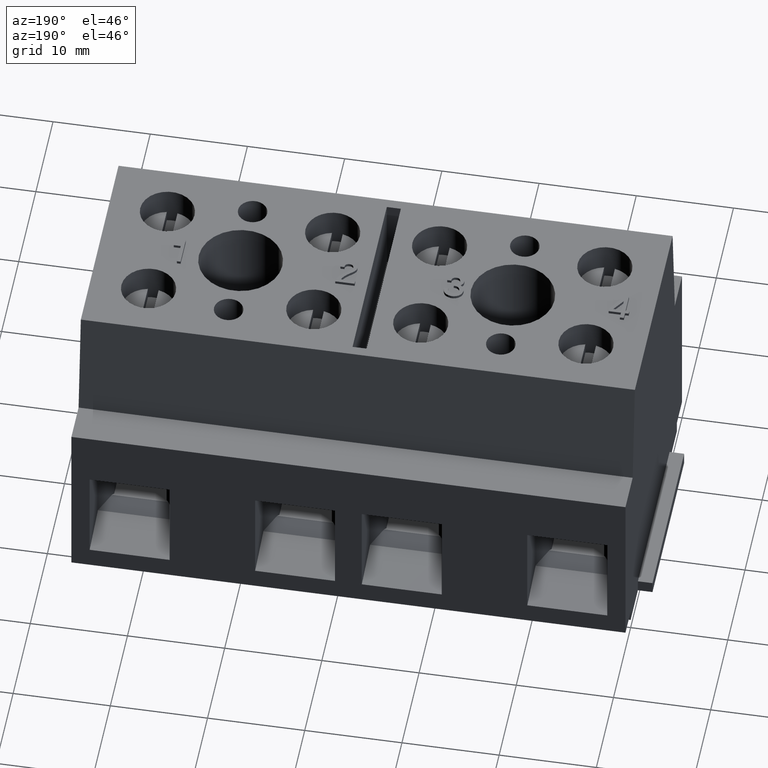
[diagram: clean part render]
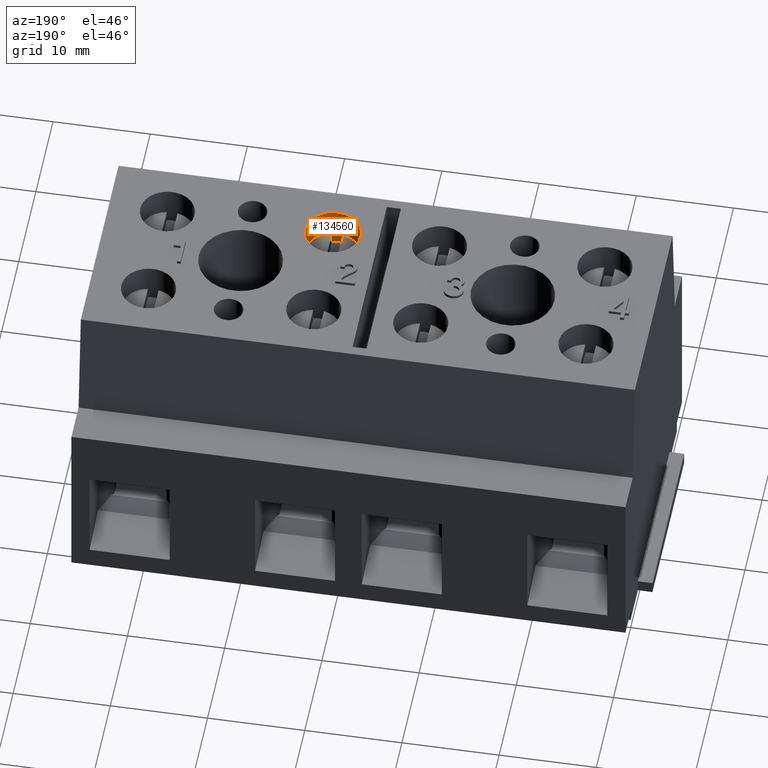
[diagram: same view with one face highlighted and labeled with its STEP entity id]
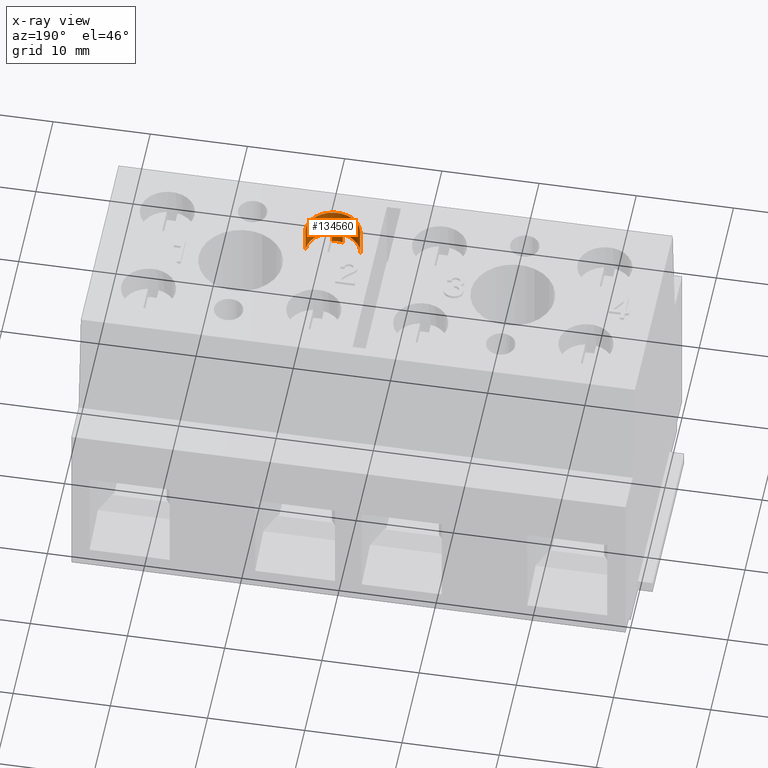
[diagram: x-ray of the same camera — body ghosted, the highlighted face saturated]
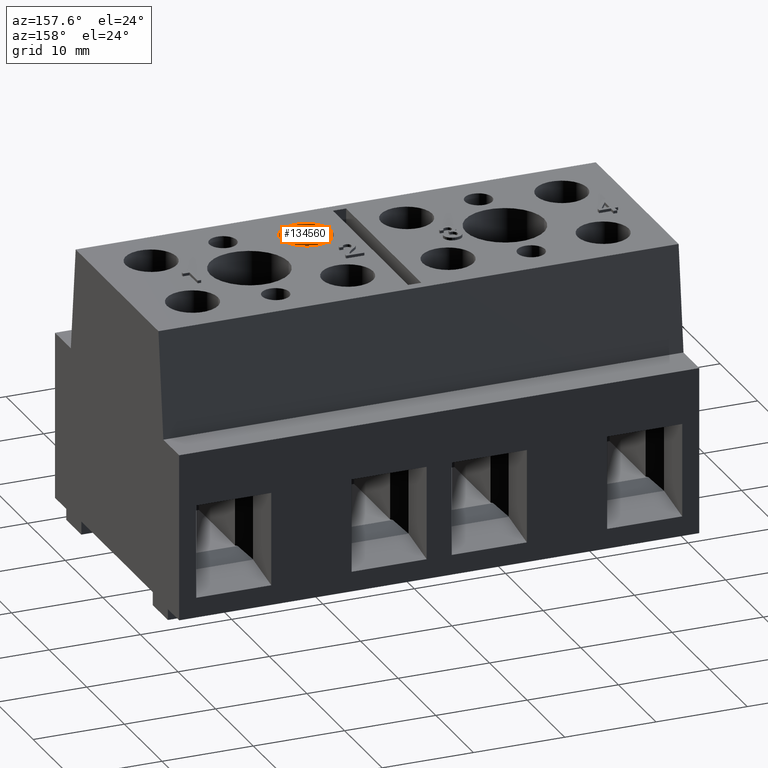
[diagram: same view with one face highlighted and labeled with its STEP entity id]
A machine part, auxiliary view. The second image highlights one B-rep face of the part: STEP entity #134560.
The next image is the same camera in x-ray: the body ghosted, the highlighted face saturated — about 0% of this face is hidden behind the body in this view.
A second angle (auxiliary view) of the same face is appended — the face is thin or edge-on in the first view.
In plain terms, the highlighted cylindrical surface (edge-blend (fillet) strip) has radius 2.8 mm, axis along (0, 0, 1).
Its self-contained STEP definition (entity closure, byte-faithful):
#1190=CARTESIAN_POINT('',(70.7713182031141,-9.91587903044529,24.));
#1200=DIRECTION('',(1.,0.,0.));
#1210=DIRECTION('',(0.,0.,1.));
#1220=AXIS2_PLACEMENT_3D('',#1190,#1200,#1210);
#1230=CIRCLE('',#1220,2.8);
#1240=CARTESIAN_POINT('',(70.7713182031141,-9.91587903044529,26.8));
#1250=VERTEX_POINT('',#1240);
#1260=CARTESIAN_POINT('',(70.7713182031141,-9.91587903044529,21.2));
#1270=VERTEX_POINT('',#1260);
#1280=EDGE_CURVE('',#1250,#1270,#1230,.T.);
#71650=CARTESIAN_POINT('',(67.8289368888558,-9.91587903044529,24.));
#71660=DIRECTION('',(1.,0.,0.));
#71670=DIRECTION('',(0.,0.,1.));
#71680=AXIS2_PLACEMENT_3D('',#71650,#71660,#71670);
#71690=CIRCLE('',#71680,2.8);
#71700=CARTESIAN_POINT('',(67.8289368888558,-9.91587903044529,21.2));
#71710=VERTEX_POINT('',#71700);
#71760=CARTESIAN_POINT('',(67.8289368888558,-12.6613298131038,23.45));
#71770=VERTEX_POINT('',#71760);
#71780=EDGE_CURVE('',#71770,#71710,#71690,.T.);
#72100=CARTESIAN_POINT('',(66.6289368888558,-12.6613298131038,23.45));
#72110=DIRECTION('',(1.,0.,0.));
#72120=VECTOR('',#72110,1.);
#72130=LINE('',#72100,#72120);
#72140=CARTESIAN_POINT('',(66.6289368888558,-12.6613298131038,23.45));
#72150=VERTEX_POINT('',#72140);
#72160=EDGE_CURVE('',#72150,#71770,#72130,.T.);
#72400=CARTESIAN_POINT('',(66.6289368888558,-9.91587903044529,24.));
#72410=DIRECTION('',(1.,0.,0.));
#72420=DIRECTION('',(0.,0.,1.));
#72430=AXIS2_PLACEMENT_3D('',#72400,#72410,#72420);
#72440=CIRCLE('',#72430,2.8);
#72450=CARTESIAN_POINT('',(66.6289368888558,-12.6613298131038,24.55));
#72460=VERTEX_POINT('',#72450);
#72470=EDGE_CURVE('',#72460,#72150,#72440,.T.);
#72830=CARTESIAN_POINT('',(66.6289368888558,-12.6613298131038,24.55));
#72840=DIRECTION('',(1.,0.,0.));
#72850=VECTOR('',#72840,1.);
#72860=LINE('',#72830,#72850);
#72870=CARTESIAN_POINT('',(67.8289368888558,-12.6613298131038,24.55));
#72880=VERTEX_POINT('',#72870);
#72890=EDGE_CURVE('',#72460,#72880,#72860,.T.);
#73070=CARTESIAN_POINT('',(67.8289368888558,-9.91587903044529,26.8));
#73080=VERTEX_POINT('',#73070);
#73090=EDGE_CURVE('',#73080,#72880,#71690,.T.);
#73290=CARTESIAN_POINT('',(66.6289368888558,-9.91587903044529,21.2));
#73300=DIRECTION('',(1.,0.,0.));
#73310=VECTOR('',#73300,1.);
#73320=LINE('',#73290,#73310);
#73330=EDGE_CURVE('',#71710,#1270,#73320,.T.);
#73400=CARTESIAN_POINT('',(66.6289368888558,-9.91587903044529,26.8));
#73410=DIRECTION('',(1.,0.,0.));
#73420=VECTOR('',#73410,1.);
#73430=LINE('',#73400,#73420);
#73440=EDGE_CURVE('',#73080,#1250,#73430,.T.);
#134410=CARTESIAN_POINT('',(66.6289368888558,-9.91587903044529,24.));
#134420=DIRECTION('',(1.,0.,0.));
#134430=DIRECTION('',(0.,0.,1.));
#134440=AXIS2_PLACEMENT_3D('',#134410,#134420,#134430);
#134450=CYLINDRICAL_SURFACE('',#134440,2.8);
#134460=ORIENTED_EDGE('',*,*,#73090,.F.);
#134470=ORIENTED_EDGE('',*,*,#72890,.T.);
#134480=ORIENTED_EDGE('',*,*,#72470,.F.);
#134490=ORIENTED_EDGE('',*,*,#72160,.F.);
#134500=ORIENTED_EDGE('',*,*,#71780,.F.);
#134510=ORIENTED_EDGE('',*,*,#73330,.F.);
#134520=ORIENTED_EDGE('',*,*,#1280,.T.);
#134530=ORIENTED_EDGE('',*,*,#73440,.T.);
#134540=EDGE_LOOP('',(#134530,#134520,#134510,#134500,#134490,#134480,
#134470,#134460));
#134550=FACE_OUTER_BOUND('',#134540,.T.);
#134560=ADVANCED_FACE('',(#134550),#134450,.F.);